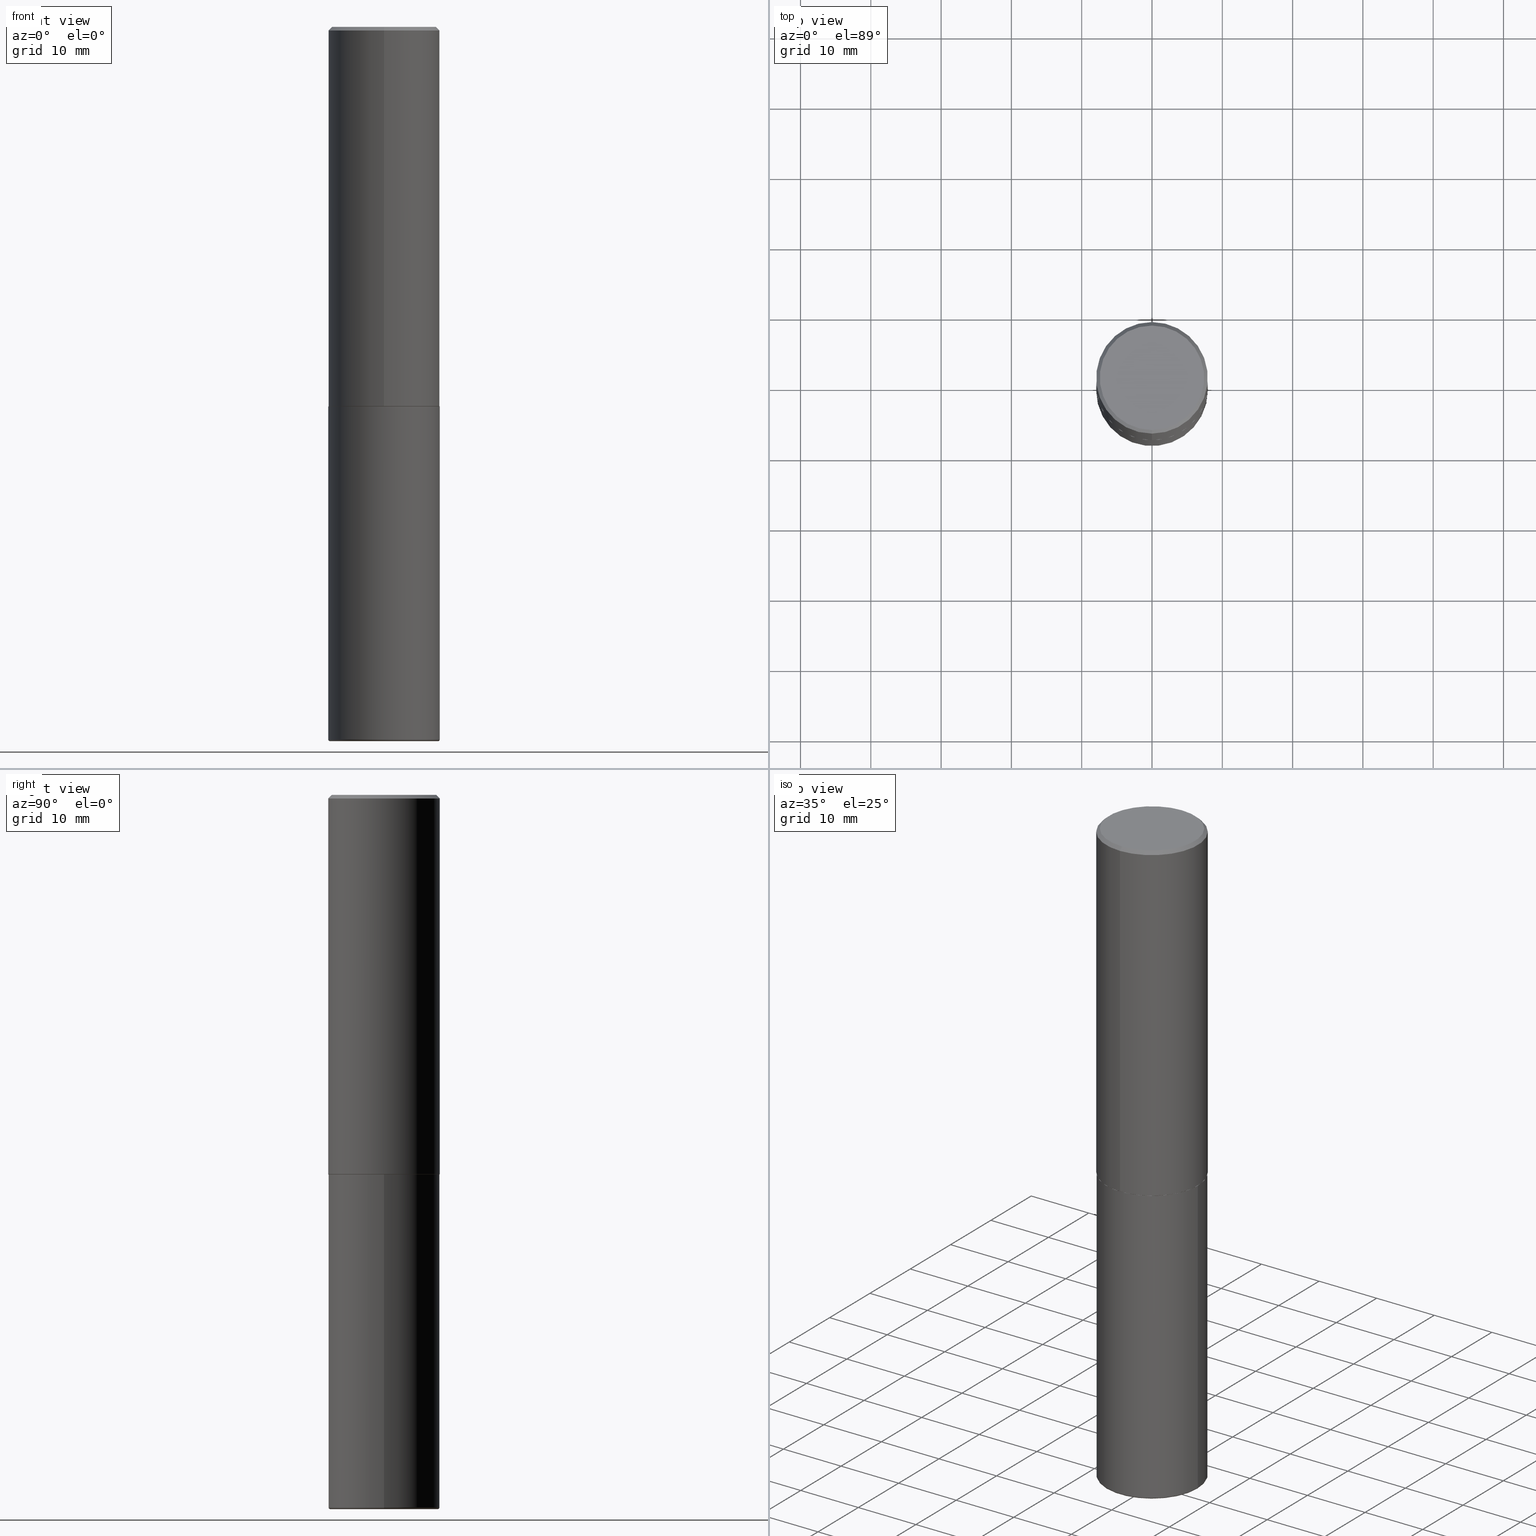
[diagram: canonical four-view strip — front | top / right | iso, engineering-drawing reading convention]
A machine part, canonical four-view strip (front | top / right | iso — engineering-drawing reading convention). The complete STEP part file that produces these views, byte-faithful:
ISO-10303-21;
HEADER;
FILE_DESCRIPTION (( 'STEP AP203' ),
    '1' );
FILE_NAME ('37573.STEP',
    '2024-03-02T04:36:15',
    ( '' ),
    ( '' ),
    'SwSTEP 2.0',
    'SolidWorks 2023',
    '' );
FILE_SCHEMA (( 'CONFIG_CONTROL_DESIGN' ));
ENDSEC;

DATA;
#1 = ORIENTED_EDGE ( 'NONE', *, *, #394, .F. ) ;
#2 = CIRCLE ( 'NONE', #360, 0.2924999999999999822 ) ;
#3 = DIRECTION ( 'NONE',  ( -6.982962677686265133E-15, -1.000000000000000000, 3.492364022149836753E-15 ) ) ;
#4 = VERTEX_POINT ( 'NONE', #138 ) ;
#5 = PERSON_AND_ORGANIZATION_ROLE ( 'classification_officer' ) ;
#6 = ADVANCED_BREP_SHAPE_REPRESENTATION ( '37573', ( #169, #23, #368 ), #412 ) ;
#7 = EDGE_LOOP ( 'NONE', ( #182, #128, #293, #236 ) ) ;
#8 = COORDINATED_UNIVERSAL_TIME_OFFSET ( 5, 0, .BEHIND. ) ;
#9 = EDGE_CURVE ( 'NONE', #54, #126, #163, .T. ) ;
#10 = CARTESIAN_POINT ( 'NONE',  ( 9.757420536678694842E-29, -1.393101054198414910E-14, -3.989999999999999769 ) ) ;
#11 = AXIS2_PLACEMENT_3D ( 'NONE', #103, #225, #106 ) ;
#12 = MECHANICAL_CONTEXT ( 'NONE', #254, 'mechanical' ) ;
#13 = LINE ( 'NONE', #400, #239 ) ;
#14 = APPROVAL_ROLE ( '' ) ;
#15 = LINE ( 'NONE', #60, #325 ) ;
#16 = DATE_TIME_ROLE ( 'creation_date' ) ;
#17 = AXIS2_PLACEMENT_3D ( 'NONE', #95, #33, #156 ) ;
#18 = EDGE_CURVE ( 'NONE', #126, #54, #385, .T. ) ;
#19 = FACE_OUTER_BOUND ( 'NONE', #34, .T. ) ;
#20 = ADVANCED_FACE ( 'NONE', ( #111 ), #207, .T. ) ;
#21 = AXIS2_PLACEMENT_3D ( 'NONE', #331, #44, #145 ) ;
#22 = DIRECTION ( 'NONE',  ( -6.982962677686265133E-15, -1.000000000000000000, 3.496765431890256920E-15 ) ) ;
#23 = MANIFOLD_SOLID_BREP ( 'Body-Move/Copy2[2]', #259 ) ;
#24 = AXIS2_PLACEMENT_3D ( 'NONE', #193, #256, #354 ) ;
#25 = VERTEX_POINT ( 'NONE', #235 ) ;
#26 = EDGE_CURVE ( 'NONE', #126, #359, #203, .T. ) ;
#27 = CARTESIAN_POINT ( 'NONE',  ( -2.175192874099219874E-15, -0.3115000000000074376, -2.124999999999998668 ) ) ;
#28 = VERTEX_POINT ( 'NONE', #228 ) ;
#29 = ADVANCED_FACE ( 'NONE', ( #195 ), #79, .F. ) ;
#30 = CYLINDRICAL_SURFACE ( 'NONE', #170, 0.3125000000000000000 ) ;
#31 = ORIENTED_EDGE ( 'NONE', *, *, #185, .F. ) ;
#32 = ORIENTED_EDGE ( 'NONE', *, *, #255, .F. ) ;
#33 = DIRECTION ( 'NONE',  ( -2.445468806185136597E-29, 3.491481338843145583E-15, 1.000000000000000000 ) ) ;
#34 = EDGE_LOOP ( 'NONE', ( #198, #102 ) ) ;
#35 = DIRECTION ( 'NONE',  ( 1.000000000000000000, -6.982962677686268288E-15, 0.000000000000000000 ) ) ;
#36 = DIRECTION ( 'NONE',  ( -2.444852431726452894E-29, 3.492364022149836358E-15, 1.000000000000000000 ) ) ;
#37 = ORIENTED_EDGE ( 'NONE', *, *, #230, .F. ) ;
#38 = ORIENTED_EDGE ( 'NONE', *, *, #9, .F. ) ;
#39 = EDGE_CURVE ( 'NONE', #152, #28, #344, .T. ) ;
#40 = DATE_AND_TIME ( #371, #297 ) ;
#41 = ORIENTED_EDGE ( 'NONE', *, *, #197, .F. ) ;
#42 = DATE_AND_TIME ( #49, #309 ) ;
#43 = CIRCLE ( 'NONE', #24, 0.3125000000000000000 ) ;
#44 = DIRECTION ( 'NONE',  ( -2.444852431726452333E-29, 3.492364022149836358E-15, 1.000000000000000000 ) ) ;
#45 = CC_DESIGN_APPROVAL ( #274, ( #268 ) ) ;
#46 = VECTOR ( 'NONE', #189, 39.37007874015748143 ) ;
#47 = DIRECTION ( 'NONE',  ( 1.000000000000000000, -6.982962677686265922E-15, 0.000000000000000000 ) ) ;
#48 = APPROVAL_STATUS ( 'not_yet_approved' ) ;
#49 = CALENDAR_DATE ( 2024, 1, 3 ) ;
#50 = AXIS2_PLACEMENT_3D ( 'NONE', #248, #218, #47 ) ;
#51 = EDGE_CURVE ( 'NONE', #136, #54, #13, .T. ) ;
#52 = CARTESIAN_POINT ( 'NONE',  ( 2.182175836776958741E-15, 0.3124999999999999445, -0.02000000000000116268 ) ) ;
#53 = DIRECTION ( 'NONE',  ( -1.000000000000000000, 6.982962677686265922E-15, -4.876176775795935793E-29 ) ) ;
#54 = VERTEX_POINT ( 'NONE', #133 ) ;
#55 = AXIS2_PLACEMENT_3D ( 'NONE', #346, #376, #406 ) ;
#56 = CARTESIAN_POINT ( 'NONE',  ( 4.889704863452922148E-31, -6.984728044299695791E-17, -0.02000000000000006981 ) ) ;
#57 = CONICAL_SURFACE ( 'NONE', #55, 0.3125000000000000000, 0.7853981633974471688 ) ;
#58 = ADVANCED_FACE ( 'NONE', ( #262 ), #389, .F. ) ;
#59 = ORIENTED_EDGE ( 'NONE', *, *, #171, .T. ) ;
#60 = CARTESIAN_POINT ( 'NONE',  ( -2.143905624303602824E-15, -0.3125000000000000555, -0.01999999999999897693 ) ) ;
#61 = EDGE_LOOP ( 'NONE', ( #327, #190 ) ) ;
#62 = LENGTH_MEASURE_WITH_UNIT ( LENGTH_MEASURE( 0.02539999999999999897 ), #391 );
#63 = ORIENTED_EDGE ( 'NONE', *, *, #171, .F. ) ;
#64 = CARTESIAN_POINT ( 'NONE',  ( -2.182175836776959136E-15, -0.3125000000000001665, 1.091363756921824478E-15 ) ) ;
#65 = AXIS2_PLACEMENT_3D ( 'NONE', #200, #135, #96 ) ;
#66 = ORIENTED_EDGE ( 'NONE', *, *, #9, .T. ) ;
#67 = DIRECTION ( 'NONE',  ( -2.444852431726452894E-29, 3.492364022149836358E-15, 1.000000000000000000 ) ) ;
#68 = DIRECTION ( 'NONE',  ( -2.444852431726452894E-29, 3.492364022149836358E-15, 1.000000000000000000 ) ) ;
#69 = CARTESIAN_POINT ( 'NONE',  ( 0.000000000000000000, 0.000000000000000000, 0.000000000000000000 ) ) ;
#70 = DIRECTION ( 'NONE',  ( 2.444852431726452333E-29, -3.492364022149836358E-15, -1.000000000000000000 ) ) ;
#71 = CARTESIAN_POINT ( 'NONE',  ( 2.213340621892763743E-15, 0.3114999999999925606, -2.125000000000000888 ) ) ;
#72 = CIRCLE ( 'NONE', #211, 0.3114999999999999991 ) ;
#73 = EDGE_LOOP ( 'NONE', ( #226, #59, #408, #375 ) ) ;
#74 = CC_DESIGN_PERSON_AND_ORGANIZATION_ASSIGNMENT ( #204, #5, ( #240 ) ) ;
#75 = APPROVAL_DATE_TIME ( #109, #86 ) ;
#76 = DIRECTION ( 'NONE',  ( 1.000000000000000000, -6.982962677686265922E-15, 4.883557194083112340E-29 ) ) ;
#77 = UNCERTAINTY_MEASURE_WITH_UNIT (LENGTH_MEASURE( 1.000000000000000082E-05 ), #292, 'distance_accuracy_value', 'NONE');
#78 = PERSON_AND_ORGANIZATION_ROLE ( 'creator' ) ;
#79 = PLANE ( 'NONE',  #21 ) ;
#80 = CALENDAR_DATE ( 2024, 1, 3 ) ;
#81 = AXIS2_PLACEMENT_3D ( 'NONE', #122, #91, #244 ) ;
#82 = DIRECTION ( 'NONE',  ( -4.851104656540957964E-15, -0.7071067811865491270, -0.7071067811865459074 ) ) ;
#83 = LOCAL_TIME ( 23, 36, 15.00000000000000000, #266 ) ;
#84 = CLOSED_SHELL ( 'NONE', ( #210, #176, #134, #177, #20, #188 ) ) ;
#85 = AXIS2_PLACEMENT_3D ( 'NONE', #154, #148, #53 ) ;
#86 = APPROVAL ( #87, 'UNSPECIFIED' ) ;
#87 = APPROVAL_STATUS ( 'not_yet_approved' ) ;
#88 = CC_DESIGN_DATE_AND_TIME_ASSIGNMENT ( #42, #298, ( #240 ) ) ;
#89 = DIRECTION ( 'NONE',  ( 1.000000000000000000, -6.982962677686265133E-15, 0.000000000000000000 ) ) ;
#90 = DIRECTION ( 'NONE',  ( 1.000000000000000000, -6.982962677686266711E-15, 4.876176775795936353E-29 ) ) ;
#91 = DIRECTION ( 'NONE',  ( -2.445468806185136597E-29, 3.491481338843145583E-15, 1.000000000000000000 ) ) ;
#92 = CIRCLE ( 'NONE', #296, 0.3125000000000000000 ) ;
#93 = CARTESIAN_POINT ( 'NONE',  ( 4.889704863452922148E-31, -6.984728044299695791E-17, -0.02000000000000006981 ) ) ;
#94 = ADVANCED_FACE ( 'NONE', ( #238 ), #276, .T. ) ;
#95 = CARTESIAN_POINT ( 'NONE',  ( 9.757420536678694842E-29, -1.393101054198414910E-14, -3.989999999999999769 ) ) ;
#96 = DIRECTION ( 'NONE',  ( -1.000000000000000000, 7.105427357601049190E-15, 0.000000000000000000 ) ) ;
#97 = EDGE_CURVE ( 'NONE', #316, #359, #281, .T. ) ;
#98 = VECTOR ( 'NONE', #263, 39.37007874015748143 ) ;
#99 = LINE ( 'NONE', #379, #116 ) ;
#100 = CC_DESIGN_APPROVAL ( #86, ( #240 ) ) ;
#101 = AXIS2_PLACEMENT_3D ( 'NONE', #357, #70, #343 ) ;
#102 = ORIENTED_EDGE ( 'NONE', *, *, #157, .T. ) ;
#103 = CARTESIAN_POINT ( 'NONE',  ( 5.195311417418712329E-29, -7.421273547068401324E-15, -2.124999999999999556 ) ) ;
#104 = EDGE_CURVE ( 'NONE', #316, #25, #2, .T. ) ;
#105 = ORIENTED_EDGE ( 'NONE', *, *, #39, .T. ) ;
#106 = DIRECTION ( 'NONE',  ( -6.982962677686265922E-15, -1.000000000000000000, 3.507991003100177457E-15 ) ) ;
#107 = ADVANCED_FACE ( 'NONE', ( #284 ), #370, .T. ) ;
#108 = ORIENTED_EDGE ( 'NONE', *, *, #314, .F. ) ;
#109 = DATE_AND_TIME ( #80, #304 ) ;
#110 = LOCAL_TIME ( 23, 36, 15.00000000000000000, #8 ) ;
#111 = FACE_OUTER_BOUND ( 'NONE', #313, .T. ) ;
#112 = APPROVAL_DATE_TIME ( #206, #364 ) ;
#113 = ORIENTED_EDGE ( 'NONE', *, *, #224, .F. ) ;
#114 = EDGE_LOOP ( 'NONE', ( #167, #413, #37, #387 ) ) ;
#115 = APPLICATION_PROTOCOL_DEFINITION ( 'international standard', 'config_control_design', 1994, #328 ) ;
#116 = VECTOR ( 'NONE', #321, 39.37007874015748143 ) ;
#117 = APPLICATION_PROTOCOL_DEFINITION ( 'international standard', 'config_control_design', 1994, #254 ) ;
#118 = PRODUCT_DEFINITION ( 'UNKNOWN', '', #268, #139 ) ;
#119 = DIRECTION ( 'NONE',  ( 2.444852431726452894E-29, -3.492364022149836358E-15, -1.000000000000000000 ) ) ;
#120 = CIRCLE ( 'NONE', #232, 0.3125000000000000000 ) ;
#121 = AXIS2_PLACEMENT_3D ( 'NONE', #69, #317, #414 ) ;
#122 = CARTESIAN_POINT ( 'NONE',  ( 9.757420536678694842E-29, -1.393101054198414910E-14, -3.989999999999999769 ) ) ;
#123 = CARTESIAN_POINT ( 'NONE',  ( 0.3025000000000000466, -1.607827156537267738E-14, -3.999999999999999556 ) ) ;
#124 = CARTESIAN_POINT ( 'NONE',  ( 4.889704863452922148E-31, -6.984728044299695791E-17, -0.02000000000000006981 ) ) ;
#125 = DIRECTION ( 'NONE',  ( -2.445468806185136597E-29, 3.491481338843145583E-15, 1.000000000000000000 ) ) ;
#126 = VERTEX_POINT ( 'NONE', #372 ) ;
#127 = CC_DESIGN_PERSON_AND_ORGANIZATION_ASSIGNMENT ( #241, #202, ( #268 ) ) ;
#128 = ORIENTED_EDGE ( 'NONE', *, *, #249, .T. ) ;
#129 = DIRECTION ( 'NONE',  ( -2.444852431726452894E-29, 3.492364022149836358E-15, 1.000000000000000000 ) ) ;
#130 = EDGE_LOOP ( 'NONE', ( #63, #289, #324, #192 ) ) ;
#131 = CIRCLE ( 'NONE', #181, 0.3125000000000000555 ) ;
#132 = CARTESIAN_POINT ( 'NONE',  ( -0.3125000000000000000, 2.220446049250313081E-15, -1.537167215704658232E-29 ) ) ;
#133 = CARTESIAN_POINT ( 'NONE',  ( -2.182175836776908254E-15, -0.3125000000000077161, -2.123999999999998334 ) ) ;
#134 = ADVANCED_FACE ( 'NONE', ( #19 ), #366, .F. ) ;
#135 = DIRECTION ( 'NONE',  ( 7.105427357601001859E-15, 1.000000000000000000, -3.491481338843145583E-15 ) ) ;
#136 = VERTEX_POINT ( 'NONE', #27 ) ;
#137 = COORDINATED_UNIVERSAL_TIME_OFFSET ( 5, 0, .BEHIND. ) ;
#138 = CARTESIAN_POINT ( 'NONE',  ( 2.216893335571564642E-15, 0.3114999999999925606, -2.125000000000000888 ) ) ;
#139 = DESIGN_CONTEXT ( 'detailed design', #328, 'design' ) ;
#140 = APPROVAL_DATE_TIME ( #399, #274 ) ;
#141 = AXIS2_PLACEMENT_3D ( 'NONE', #260, #287, #388 ) ;
#142 = ADVANCED_FACE ( 'NONE', ( #277 ), #57, .T. ) ;
#143 = ORIENTED_EDGE ( 'NONE', *, *, #286, .F. ) ;
#144 = PERSON_AND_ORGANIZATION ( #390, #234 ) ;
#145 = DIRECTION ( 'NONE',  ( -6.982962677686265922E-15, -1.000000000000000000, 3.492364022149836358E-15 ) ) ;
#146 = LINE ( 'NONE', #71, #199 ) ;
#147 = CIRCLE ( 'NONE', #50, 0.3025000000000000466 ) ;
#148 = DIRECTION ( 'NONE',  ( 2.438088387897960049E-29, -3.491481338843145188E-15, -1.000000000000000000 ) ) ;
#149 = AXIS2_PLACEMENT_3D ( 'NONE', #165, #355, #395 ) ;
#150 = VECTOR ( 'NONE', #341, 39.37007874015748143 ) ;
#151 = FACE_OUTER_BOUND ( 'NONE', #310, .T. ) ;
#152 = VERTEX_POINT ( 'NONE', #123 ) ;
#153 = CC_DESIGN_PERSON_AND_ORGANIZATION_ASSIGNMENT ( #303, #78, ( #118 ) ) ;
#154 = CARTESIAN_POINT ( 'NONE',  ( 5.196621213143414147E-29, -7.419397845041682046E-15, -2.124999999999999556 ) ) ;
#155 = CARTESIAN_POINT ( 'NONE',  ( 0.000000000000000000, 0.000000000000000000, 0.000000000000000000 ) ) ;
#156 = DIRECTION ( 'NONE',  ( 1.000000000000000000, -6.982962677686268288E-15, 0.000000000000000000 ) ) ;
#157 = EDGE_CURVE ( 'NONE', #320, #353, #92, .T. ) ;
#158 = ORIENTED_EDGE ( 'NONE', *, *, #51, .F. ) ;
#159 = DIRECTION ( 'NONE',  ( -6.982962677686265922E-15, -1.000000000000000000, 3.507991003100177457E-15 ) ) ;
#160 = VERTEX_POINT ( 'NONE', #246 ) ;
#161 = CARTESIAN_POINT ( 'NONE',  ( 0.000000000000000000, 0.000000000000000000, 0.000000000000000000 ) ) ;
#162 = DIRECTION ( 'NONE',  ( -4.937700262165053702E-15, -0.7071067811866175168, 0.7071067811864775177 ) ) ;
#163 = CIRCLE ( 'NONE', #250, 0.3125000000000002776 ) ;
#164 = DIRECTION ( 'NONE',  ( -6.982962677686265922E-15, -1.000000000000000000, 3.507991003100177457E-15 ) ) ;
#165 = CARTESIAN_POINT ( 'NONE',  ( 5.192866564986985411E-29, -7.417781183046251262E-15, -2.123999999999999666 ) ) ;
#166 = ORIENTED_EDGE ( 'NONE', *, *, #264, .T. ) ;
#167 = ORIENTED_EDGE ( 'NONE', *, *, #314, .T. ) ;
#168 = PERSON_AND_ORGANIZATION ( #390, #234 ) ;
#169 = MANIFOLD_SOLID_BREP ( 'Body-Move/Copy2[1]', #84 ) ;
#170 = AXIS2_PLACEMENT_3D ( 'NONE', #155, #315, #175 ) ;
#171 = EDGE_CURVE ( 'NONE', #25, #160, #15, .T. ) ;
#172 = CONICAL_SURFACE ( 'NONE', #11, 0.3114999999999999991, 0.7853981633975507526 ) ;
#173 = DIRECTION ( 'NONE',  ( -6.982962677686266711E-15, -1.000000000000000000, 3.491481338843145583E-15 ) ) ;
#174 = SHAPE_DEFINITION_REPRESENTATION ( #245, #6 ) ;
#175 = DIRECTION ( 'NONE',  ( 1.000000000000000000, -6.982962677686266711E-15, 4.876176775795936353E-29 ) ) ;
#176 = ADVANCED_FACE ( 'NONE', ( #302 ), #405, .T. ) ;
#177 = ADVANCED_FACE ( 'NONE', ( #215 ), #373, .T. ) ;
#178 = DIRECTION ( 'NONE',  ( -2.444852431726452894E-29, 3.492364022149836358E-15, 1.000000000000000000 ) ) ;
#179 = PLANE ( 'NONE',  #308 ) ;
#180 = CC_DESIGN_PERSON_AND_ORGANIZATION_ASSIGNMENT ( #144, #401, ( #340 ) ) ;
#181 = AXIS2_PLACEMENT_3D ( 'NONE', #382, #125, #35 ) ;
#182 = ORIENTED_EDGE ( 'NONE', *, *, #212, .F. ) ;
#183 = CIRCLE ( 'NONE', #65, 0.009999999999999825001 ) ;
#184 = CARTESIAN_POINT ( 'NONE',  ( 0.000000000000000000, 0.000000000000000000, 0.000000000000000000 ) ) ;
#185 = EDGE_CURVE ( 'NONE', #359, #160, #120, .T. ) ;
#186 = DIRECTION ( 'NONE',  ( -6.982962677686265133E-15, -1.000000000000000000, 3.492364022149836753E-15 ) ) ;
#187 = ORIENTED_EDGE ( 'NONE', *, *, #249, .F. ) ;
#188 = ADVANCED_FACE ( 'NONE', ( #404 ), #179, .T. ) ;
#189 = DIRECTION ( 'NONE',  ( -2.444852431726452614E-29, 3.492364022149836358E-15, 1.000000000000000000 ) ) ;
#190 = ORIENTED_EDGE ( 'NONE', *, *, #299, .T. ) ;
#191 = FACE_OUTER_BOUND ( 'NONE', #253, .T. ) ;
#192 = ORIENTED_EDGE ( 'NONE', *, *, #185, .T. ) ;
#193 = CARTESIAN_POINT ( 'NONE',  ( 5.196621213143414147E-29, -7.419397845041682046E-15, -2.124999999999999556 ) ) ;
#194 = EDGE_CURVE ( 'NONE', #160, #359, #367, .T. ) ;
#195 = FACE_OUTER_BOUND ( 'NONE', #251, .T. ) ;
#196 = CARTESIAN_POINT ( 'NONE',  ( -0.3025000000000000466, -1.176354903621605689E-14, -3.999999999999999556 ) ) ;
#197 = EDGE_CURVE ( 'NONE', #381, #152, #147, .T. ) ;
#198 = ORIENTED_EDGE ( 'NONE', *, *, #255, .T. ) ;
#199 = VECTOR ( 'NONE', #350, 39.37007874015748143 ) ;
#200 = CARTESIAN_POINT ( 'NONE',  ( -0.3025000000000000466, -1.178161876630984610E-14, -3.989999999999999769 ) ) ;
#201 = EDGE_LOOP ( 'NONE', ( #345, #322, #38, #158 ) ) ;
#202 = PERSON_AND_ORGANIZATION_ROLE ( 'design_supplier' ) ;
#203 = LINE ( 'NONE', #397, #418 ) ;
#204 = PERSON_AND_ORGANIZATION ( #390, #234 ) ;
#205 = ORIENTED_EDGE ( 'NONE', *, *, #411, .F. ) ;
#206 = DATE_AND_TIME ( #272, #83 ) ;
#207 = TOROIDAL_SURFACE ( 'NONE', #258, 0.3025000000000000466, 0.009999999999999825001 ) ;
#208 = AXIS2_PLACEMENT_3D ( 'NONE', #288, #67, #159 ) ;
#209 = CALENDAR_DATE ( 2024, 1, 3 ) ;
#210 = ADVANCED_FACE ( 'NONE', ( #151 ), #30, .T. ) ;
#211 = AXIS2_PLACEMENT_3D ( 'NONE', #323, #36, #164 ) ;
#212 = EDGE_CURVE ( 'NONE', #4, #126, #146, .T. ) ;
#213 = CARTESIAN_POINT ( 'NONE',  ( 5.195311417418712329E-29, -7.421273547068401324E-15, -2.124999999999999556 ) ) ;
#214 = ADVANCED_FACE ( 'NONE', ( #191 ), #319, .T. ) ;
#215 = FACE_OUTER_BOUND ( 'NONE', #329, .T. ) ;
#216 = DIRECTION ( 'NONE',  ( -6.982962677686265922E-15, -1.000000000000000000, 3.507991003100177457E-15 ) ) ;
#217 = AXIS2_PLACEMENT_3D ( 'NONE', #184, #409, #90 ) ;
#218 = DIRECTION ( 'NONE',  ( -2.445468806185136597E-29, 3.491481338843145583E-15, 1.000000000000000000 ) ) ;
#219 = ORIENTED_EDGE ( 'NONE', *, *, #242, .T. ) ;
#220 = LINE ( 'NONE', #132, #98 ) ;
#221 = ORIENTED_EDGE ( 'NONE', *, *, #157, .F. ) ;
#222 = DIRECTION ( 'NONE',  ( -6.982962677686265133E-15, -1.000000000000000000, 3.492364022149836358E-15 ) ) ;
#223 = CIRCLE ( 'NONE', #17, 0.3125000000000000555 ) ;
#224 = EDGE_CURVE ( 'NONE', #257, #320, #220, .T. ) ;
#225 = DIRECTION ( 'NONE',  ( -2.444852431726452894E-29, 3.492364022149836358E-15, 1.000000000000000000 ) ) ;
#226 = ORIENTED_EDGE ( 'NONE', *, *, #299, .F. ) ;
#227 = CARTESIAN_POINT ( 'NONE',  ( 2.182175836776958741E-15, 0.3124999999999999445, -0.02000000000000116268 ) ) ;
#228 = CARTESIAN_POINT ( 'NONE',  ( 0.3125000000000000000, -1.611318637876110745E-14, -3.989999999999999769 ) ) ;
#229 = LINE ( 'NONE', #64, #46 ) ;
#230 = EDGE_CURVE ( 'NONE', #28, #257, #223, .T. ) ;
#231 = EDGE_LOOP ( 'NONE', ( #108, #41 ) ) ;
#232 = AXIS2_PLACEMENT_3D ( 'NONE', #56, #336, #342 ) ;
#233 = COORDINATED_UNIVERSAL_TIME_OFFSET ( 5, 0, .BEHIND. ) ;
#234 = ORGANIZATION ( 'UNSPECIFIED', 'UNSPECIFIED', '' ) ;
#235 = CARTESIAN_POINT ( 'NONE',  ( -2.075300644325887493E-15, -0.2924999999999999822, 1.030311686326234990E-15 ) ) ;
#236 = ORIENTED_EDGE ( 'NONE', *, *, #18, .F. ) ;
#237 = PERSON_AND_ORGANIZATION_ROLE ( 'creator' ) ;
#238 = FACE_OUTER_BOUND ( 'NONE', #201, .T. ) ;
#239 = VECTOR ( 'NONE', #162, 39.37007874015748143 ) ;
#240 = SECURITY_CLASSIFICATION ( '', '', #393 ) ;
#241 = PERSON_AND_ORGANIZATION ( #390, #234 ) ;
#242 = EDGE_CURVE ( 'NONE', #54, #160, #229, .T. ) ;
#243 = CARTESIAN_POINT ( 'NONE',  ( 5.196621213143414147E-29, -7.419397845041682046E-15, -2.124999999999999556 ) ) ;
#244 = DIRECTION ( 'NONE',  ( 1.000000000000000000, -6.982962677686265922E-15, 4.883557194083112340E-29 ) ) ;
#245 = PRODUCT_DEFINITION_SHAPE ( 'NONE', 'NONE',  #118 ) ;
#246 = CARTESIAN_POINT ( 'NONE',  ( -2.143905624303602824E-15, -0.3125000000000000555, -0.01999999999999897693 ) ) ;
#247 = EDGE_LOOP ( 'NONE', ( #392, #265, #219, #31 ) ) ;
#248 = CARTESIAN_POINT ( 'NONE',  ( 9.781875224740545266E-29, -1.396592535537258075E-14, -3.999999999999999556 ) ) ;
#249 = EDGE_CURVE ( 'NONE', #4, #136, #335, .T. ) ;
#250 = AXIS2_PLACEMENT_3D ( 'NONE', #267, #68, #295 ) ;
#251 = EDGE_LOOP ( 'NONE', ( #1, #187 ) ) ;
#252 = CARTESIAN_POINT ( 'NONE',  ( -0.3125000000000000000, -8.454758144262601705E-15, -2.124999999999999556 ) ) ;
#253 = EDGE_LOOP ( 'NONE', ( #66, #283, #291, #347 ) ) ;
#254 = APPLICATION_CONTEXT ( 'configuration controlled 3d designs of mechanical parts and assemblies' ) ;
#255 = EDGE_CURVE ( 'NONE', #353, #320, #43, .T. ) ;
#256 = DIRECTION ( 'NONE',  ( -2.445468806185136597E-29, 3.491481338843145583E-15, 1.000000000000000000 ) ) ;
#257 = VERTEX_POINT ( 'NONE', #384 ) ;
#258 = AXIS2_PLACEMENT_3D ( 'NONE', #10, #362, #76 ) ;
#259 = CLOSED_SHELL ( 'NONE', ( #94, #214, #107, #142, #380, #334, #29, #58 ) ) ;
#260 = CARTESIAN_POINT ( 'NONE',  ( 9.781875224740545266E-29, -1.396592535537258075E-14, -3.999999999999999556 ) ) ;
#261 = CIRCLE ( 'NONE', #278, 0.2924999999999999822 ) ;
#262 = FACE_OUTER_BOUND ( 'NONE', #61, .T. ) ;
#263 = DIRECTION ( 'NONE',  ( -2.445468806185136877E-29, 3.491481338843145188E-15, 1.000000000000000000 ) ) ;
#264 = EDGE_CURVE ( 'NONE', #28, #353, #99, .T. ) ;
#265 = ORIENTED_EDGE ( 'NONE', *, *, #18, .T. ) ;
#266 = COORDINATED_UNIVERSAL_TIME_OFFSET ( 5, 0, .BEHIND. ) ;
#267 = CARTESIAN_POINT ( 'NONE',  ( 5.192866564986985411E-29, -7.417781183046251262E-15, -2.123999999999999666 ) ) ;
#268 = PRODUCT_DEFINITION_FORMATION_WITH_SPECIFIED_SOURCE ( 'ANY', '', #340, .NOT_KNOWN. ) ;
#269 = ORIENTED_EDGE ( 'NONE', *, *, #264, .F. ) ;
#270 = APPROVAL_STATUS ( 'not_yet_approved' ) ;
#271 = CARTESIAN_POINT ( 'NONE',  ( 0.3025000000000000466, -1.604335675198424415E-14, -3.989999999999999769 ) ) ;
#272 = CALENDAR_DATE ( 2024, 1, 3 ) ;
#273 = CARTESIAN_POINT ( 'NONE',  ( -2.150299018297948745E-46, 3.071607443834507134E-32, 8.795209847407834549E-18 ) ) ;
#274 = APPROVAL ( #270, 'UNSPECIFIED' ) ;
#275 = DIRECTION ( 'NONE',  ( 0.000000000000000000, 0.000000000000000000, 1.000000000000000000 ) ) ;
#276 = CONICAL_SURFACE ( 'NONE', #402, 0.3114999999999999991, 0.7853981633975507526 ) ;
#277 = FACE_OUTER_BOUND ( 'NONE', #130, .T. ) ;
#278 = AXIS2_PLACEMENT_3D ( 'NONE', #417, #129, #3 ) ;
#279 = APPROVAL_PERSON_ORGANIZATION ( #168, #86, #365 ) ;
#280 = AXIS2_PLACEMENT_3D ( 'NONE', #161, #348, #222 ) ;
#281 = LINE ( 'NONE', #52, #150 ) ;
#282 = DIRECTION ( 'NONE',  ( -1.000000000000000000, 6.982962677686265922E-15, -4.876176775795935793E-29 ) ) ;
#283 = ORIENTED_EDGE ( 'NONE', *, *, #26, .T. ) ;
#284 = FACE_OUTER_BOUND ( 'NONE', #73, .T. ) ;
#285 = CARTESIAN_POINT ( 'NONE',  ( 0.3125000000000000000, -9.601573681818640393E-15, -2.124999999999999556 ) ) ;
#286 = EDGE_CURVE ( 'NONE', #257, #28, #131, .T. ) ;
#287 = DIRECTION ( 'NONE',  ( -2.445468806185136597E-29, 3.491481338843145583E-15, 1.000000000000000000 ) ) ;
#288 = CARTESIAN_POINT ( 'NONE',  ( 5.195311417418712329E-29, -7.421273547068401324E-15, -2.124999999999999556 ) ) ;
#289 = ORIENTED_EDGE ( 'NONE', *, *, #104, .F. ) ;
#290 = CC_DESIGN_APPROVAL ( #364, ( #118 ) ) ;
#291 = ORIENTED_EDGE ( 'NONE', *, *, #194, .F. ) ;
#292 =( CONVERSION_BASED_UNIT ( 'INCH', #62 ) LENGTH_UNIT ( ) NAMED_UNIT ( #301 ) );
#293 = ORIENTED_EDGE ( 'NONE', *, *, #51, .T. ) ;
#294 = PERSON_AND_ORGANIZATION ( #390, #234 ) ;
#295 = DIRECTION ( 'NONE',  ( -6.982962677686265922E-15, -1.000000000000000000, 3.496765431890253764E-15 ) ) ;
#296 = AXIS2_PLACEMENT_3D ( 'NONE', #243, #374, #89 ) ;
#297 = LOCAL_TIME ( 23, 36, 15.00000000000000000, #333 ) ;
#298 = DATE_TIME_ROLE ( 'classification_date' ) ;
#299 = EDGE_CURVE ( 'NONE', #25, #316, #261, .T. ) ;
#300 = DIRECTION ( 'NONE',  ( 1.000000000000000000, -6.982962677686261189E-15, 0.000000000000000000 ) ) ;
#301 = DIMENSIONAL_EXPONENTS ( 1.000000000000000000, 0.000000000000000000, 0.000000000000000000, 0.000000000000000000, 0.000000000000000000, 0.000000000000000000, 0.000000000000000000 ) ;
#302 = FACE_OUTER_BOUND ( 'NONE', #114, .T. ) ;
#303 = PERSON_AND_ORGANIZATION ( #390, #234 ) ;
#304 = LOCAL_TIME ( 23, 36, 15.00000000000000000, #137 ) ;
#305 = CC_DESIGN_DATE_AND_TIME_ASSIGNMENT ( #40, #16, ( #118 ) ) ;
#306 = DIRECTION ( 'NONE',  ( -2.444852431726452894E-29, 3.492364022149836358E-15, 1.000000000000000000 ) ) ;
#307 = DIRECTION ( 'NONE',  ( -2.444852431726452894E-29, 3.492364022149836358E-15, 1.000000000000000000 ) ) ;
#308 = AXIS2_PLACEMENT_3D ( 'NONE', #407, #312, #282 ) ;
#309 = LOCAL_TIME ( 23, 36, 15.00000000000000000, #233 ) ;
#310 = EDGE_LOOP ( 'NONE', ( #378, #383, #32, #269 ) ) ;
#311 = CIRCLE ( 'NONE', #141, 0.3025000000000000466 ) ;
#312 = DIRECTION ( 'NONE',  ( 2.438088387897960049E-29, -3.491481338843145188E-15, -1.000000000000000000 ) ) ;
#313 = EDGE_LOOP ( 'NONE', ( #205, #318, #105, #143 ) ) ;
#314 = EDGE_CURVE ( 'NONE', #152, #381, #311, .T. ) ;
#315 = DIRECTION ( 'NONE',  ( -2.445468806185136597E-29, 3.491481338843145583E-15, 1.000000000000000000 ) ) ;
#316 = VERTEX_POINT ( 'NONE', #416 ) ;
#317 = DIRECTION ( 'NONE',  ( -2.444852431726452894E-29, 3.492364022149836358E-15, 1.000000000000000000 ) ) ;
#318 = ORIENTED_EDGE ( 'NONE', *, *, #197, .T. ) ;
#319 = CYLINDRICAL_SURFACE ( 'NONE', #280, 0.3125000000000001665 ) ;
#320 = VERTEX_POINT ( 'NONE', #252 ) ;
#321 = DIRECTION ( 'NONE',  ( -2.445468806185136877E-29, 3.491481338843145188E-15, 1.000000000000000000 ) ) ;
#322 = ORIENTED_EDGE ( 'NONE', *, *, #212, .T. ) ;
#323 = CARTESIAN_POINT ( 'NONE',  ( 5.195311417418712329E-29, -7.421273547068401324E-15, -2.124999999999999556 ) ) ;
#324 = ORIENTED_EDGE ( 'NONE', *, *, #97, .T. ) ;
#325 = VECTOR ( 'NONE', #82, 39.37007874015748143 ) ;
#326 = FACE_OUTER_BOUND ( 'NONE', #247, .T. ) ;
#327 = ORIENTED_EDGE ( 'NONE', *, *, #104, .T. ) ;
#328 = APPLICATION_CONTEXT ( 'configuration controlled 3d designs of mechanical parts and assemblies' ) ;
#329 = EDGE_LOOP ( 'NONE', ( #113, #415, #166, #221 ) ) ;
#330 = PERSON_AND_ORGANIZATION ( #390, #234 ) ;
#331 = CARTESIAN_POINT ( 'NONE',  ( 5.195311417418712329E-29, -7.421273547068401324E-15, -2.124999999999999556 ) ) ;
#332 = AXIS2_PLACEMENT_3D ( 'NONE', #124, #119, #410 ) ;
#333 = COORDINATED_UNIVERSAL_TIME_OFFSET ( 5, 0, .BEHIND. ) ;
#334 = ADVANCED_FACE ( 'NONE', ( #356 ), #172, .T. ) ;
#335 = CIRCLE ( 'NONE', #208, 0.3114999999999999991 ) ;
#336 = DIRECTION ( 'NONE',  ( -2.444852431726452894E-29, 3.492364022149836358E-15, 1.000000000000000000 ) ) ;
#337 = APPROVAL_ROLE ( '' ) ;
#338 = DIRECTION ( 'NONE',  ( 1.000000000000000000, 0.000000000000000000, 0.000000000000000000 ) ) ;
#339 = CC_DESIGN_SECURITY_CLASSIFICATION ( #240, ( #268 ) ) ;
#340 = PRODUCT ( '37573', '37573', '', ( #12 ) ) ;
#341 = DIRECTION ( 'NONE',  ( 4.937700262164541731E-15, 0.7071067811865442421, -0.7071067811865507924 ) ) ;
#342 = DIRECTION ( 'NONE',  ( -6.982962677686265133E-15, -1.000000000000000000, 3.496765431890256920E-15 ) ) ;
#343 = DIRECTION ( 'NONE',  ( 6.982962677686265922E-15, 1.000000000000000000, -3.492364022149836358E-15 ) ) ;
#344 = CIRCLE ( 'NONE', #377, 0.009999999999999825001 ) ;
#345 = ORIENTED_EDGE ( 'NONE', *, *, #394, .T. ) ;
#346 = CARTESIAN_POINT ( 'NONE',  ( 4.889704863452922148E-31, -6.984728044299695791E-17, -0.02000000000000006981 ) ) ;
#347 = ORIENTED_EDGE ( 'NONE', *, *, #242, .F. ) ;
#348 = DIRECTION ( 'NONE',  ( -2.444852431726452894E-29, 3.492364022149836358E-15, 1.000000000000000000 ) ) ;
#349 = CC_DESIGN_PERSON_AND_ORGANIZATION_ASSIGNMENT ( #403, #237, ( #268 ) ) ;
#350 = DIRECTION ( 'NONE',  ( 5.024295867788576727E-15, 0.7071067811866224018, 0.7071067811864726327 ) ) ;
#351 = AXIS2_PLACEMENT_3D ( 'NONE', #93, #307, #22 ) ;
#352 = APPROVAL_PERSON_ORGANIZATION ( #294, #274, #337 ) ;
#353 = VERTEX_POINT ( 'NONE', #285 ) ;
#354 = DIRECTION ( 'NONE',  ( 1.000000000000000000, -6.982962677686265133E-15, 0.000000000000000000 ) ) ;
#355 = DIRECTION ( 'NONE',  ( -2.444852431726452894E-29, 3.492364022149836358E-15, 1.000000000000000000 ) ) ;
#356 = FACE_OUTER_BOUND ( 'NONE', #7, .T. ) ;
#357 = CARTESIAN_POINT ( 'NONE',  ( 2.042516583223232540E-15, 0.2924999999999999822, -1.017118871555123169E-15 ) ) ;
#358 = CYLINDRICAL_SURFACE ( 'NONE', #121, 0.3125000000000001665 ) ;
#359 = VERTEX_POINT ( 'NONE', #227 ) ;
#360 = AXIS2_PLACEMENT_3D ( 'NONE', #273, #178, #186 ) ;
#361 =( NAMED_UNIT ( * ) SI_UNIT ( $, .STERADIAN. ) SOLID_ANGLE_UNIT ( ) );
#362 = DIRECTION ( 'NONE',  ( -2.445468806185136597E-29, 3.491481338843145583E-15, 1.000000000000000000 ) ) ;
#363 = DIRECTION ( 'NONE',  ( -2.444852431726452614E-29, 3.492364022149836358E-15, 1.000000000000000000 ) ) ;
#364 = APPROVAL ( #48, 'UNSPECIFIED' ) ;
#365 = APPROVAL_ROLE ( '' ) ;
#366 = PLANE ( 'NONE',  #85 ) ;
#367 = CIRCLE ( 'NONE', #351, 0.3125000000000000000 ) ;
#368 = AXIS2_PLACEMENT_3D ( 'NONE', #396, #275, #338 ) ;
#369 =( NAMED_UNIT ( * ) PLANE_ANGLE_UNIT ( ) SI_UNIT ( $, .RADIAN. ) );
#370 = CONICAL_SURFACE ( 'NONE', #332, 0.3125000000000000000, 0.7853981633974471688 ) ;
#371 = CALENDAR_DATE ( 2024, 1, 3 ) ;
#372 = CARTESIAN_POINT ( 'NONE',  ( 2.220446049250340297E-15, 0.3124999999999928391, -2.124000000000000554 ) ) ;
#373 = CYLINDRICAL_SURFACE ( 'NONE', #217, 0.3125000000000000000 ) ;
#374 = DIRECTION ( 'NONE',  ( -2.445468806185136597E-29, 3.491481338843145583E-15, 1.000000000000000000 ) ) ;
#375 = ORIENTED_EDGE ( 'NONE', *, *, #97, .F. ) ;
#376 = DIRECTION ( 'NONE',  ( 2.444852431726452894E-29, -3.492364022149836358E-15, -1.000000000000000000 ) ) ;
#377 = AXIS2_PLACEMENT_3D ( 'NONE', #271, #173, #300 ) ;
#378 = ORIENTED_EDGE ( 'NONE', *, *, #230, .T. ) ;
#379 = CARTESIAN_POINT ( 'NONE',  ( 0.3125000000000000000, -2.182175836776958347E-15, 1.523805242436230075E-29 ) ) ;
#380 = ADVANCED_FACE ( 'NONE', ( #326 ), #358, .T. ) ;
#381 = VERTEX_POINT ( 'NONE', #196 ) ;
#382 = CARTESIAN_POINT ( 'NONE',  ( 9.757420536678694842E-29, -1.393101054198414910E-14, -3.989999999999999769 ) ) ;
#383 = ORIENTED_EDGE ( 'NONE', *, *, #224, .T. ) ;
#384 = CARTESIAN_POINT ( 'NONE',  ( -0.3125000000000000000, -1.171056449273383602E-14, -3.989999999999999769 ) ) ;
#385 = CIRCLE ( 'NONE', #149, 0.3125000000000002776 ) ;
#386 = APPROVAL_PERSON_ORGANIZATION ( #330, #364, #14 ) ;
#387 = ORIENTED_EDGE ( 'NONE', *, *, #39, .F. ) ;
#388 = DIRECTION ( 'NONE',  ( 1.000000000000000000, -6.982962677686265922E-15, 0.000000000000000000 ) ) ;
#389 = PLANE ( 'NONE',  #101 ) ;
#390 = PERSON ( 'UNSPECIFIED', 'UNSPECIFIED', 'UNSPECIFIED', ('UNSPECIFIED'), ('UNSPECIFIED'), ('UNSPECIFIED') ) ;
#391 =( LENGTH_UNIT ( ) NAMED_UNIT ( * ) SI_UNIT ( $, .METRE. ) );
#392 = ORIENTED_EDGE ( 'NONE', *, *, #26, .F. ) ;
#393 = SECURITY_CLASSIFICATION_LEVEL ( 'unclassified' ) ;
#394 = EDGE_CURVE ( 'NONE', #136, #4, #72, .T. ) ;
#395 = DIRECTION ( 'NONE',  ( -6.982962677686265922E-15, -1.000000000000000000, 3.496765431890253764E-15 ) ) ;
#396 = CARTESIAN_POINT ( 'NONE',  ( 0.000000000000000000, 0.000000000000000000, 0.000000000000000000 ) ) ;
#397 = CARTESIAN_POINT ( 'NONE',  ( 2.220446049250313475E-15, 0.3125000000000001665, -1.091363756921824478E-15 ) ) ;
#398 = PRODUCT_RELATED_PRODUCT_CATEGORY ( 'detail', '', ( #340 ) ) ;
#399 = DATE_AND_TIME ( #209, #110 ) ;
#400 = CARTESIAN_POINT ( 'NONE',  ( -2.175192874099219874E-15, -0.3115000000000074376, -2.124999999999998668 ) ) ;
#401 = PERSON_AND_ORGANIZATION_ROLE ( 'design_owner' ) ;
#402 = AXIS2_PLACEMENT_3D ( 'NONE', #213, #306, #216 ) ;
#403 = PERSON_AND_ORGANIZATION ( #390, #234 ) ;
#404 = FACE_OUTER_BOUND ( 'NONE', #231, .T. ) ;
#405 = TOROIDAL_SURFACE ( 'NONE', #81, 0.3025000000000000466, 0.009999999999999825001 ) ;
#406 = DIRECTION ( 'NONE',  ( 6.982962677686265133E-15, 1.000000000000000000, -3.496765431890256920E-15 ) ) ;
#407 = CARTESIAN_POINT ( 'NONE',  ( 1.482687160976392448E-28, -6.741203388657175081E-15, -4.000000000000000000 ) ) ;
#408 = ORIENTED_EDGE ( 'NONE', *, *, #194, .T. ) ;
#409 = DIRECTION ( 'NONE',  ( -2.445468806185136597E-29, 3.491481338843145583E-15, 1.000000000000000000 ) ) ;
#410 = DIRECTION ( 'NONE',  ( 6.982962677686265133E-15, 1.000000000000000000, -3.496765431890256920E-15 ) ) ;
#411 = EDGE_CURVE ( 'NONE', #381, #257, #183, .T. ) ;
#412 =( GEOMETRIC_REPRESENTATION_CONTEXT ( 3 ) GLOBAL_UNCERTAINTY_ASSIGNED_CONTEXT ( ( #77 ) ) GLOBAL_UNIT_ASSIGNED_CONTEXT ( ( #292, #369, #361 ) ) REPRESENTATION_CONTEXT ( 'NONE', 'WORKASPACE' ) );
#413 = ORIENTED_EDGE ( 'NONE', *, *, #411, .T. ) ;
#414 = DIRECTION ( 'NONE',  ( -6.982962677686265133E-15, -1.000000000000000000, 3.492364022149836358E-15 ) ) ;
#415 = ORIENTED_EDGE ( 'NONE', *, *, #286, .T. ) ;
#416 = CARTESIAN_POINT ( 'NONE',  ( 2.112346210000095838E-15, 0.2924999999999999822, -1.012721266631419361E-15 ) ) ;
#417 = CARTESIAN_POINT ( 'NONE',  ( -2.150299018297948745E-46, 3.071607443834507134E-32, 8.795209847407834549E-18 ) ) ;
#418 = VECTOR ( 'NONE', #363, 39.37007874015748143 ) ;
ENDSEC;
END-ISO-10303-21;
